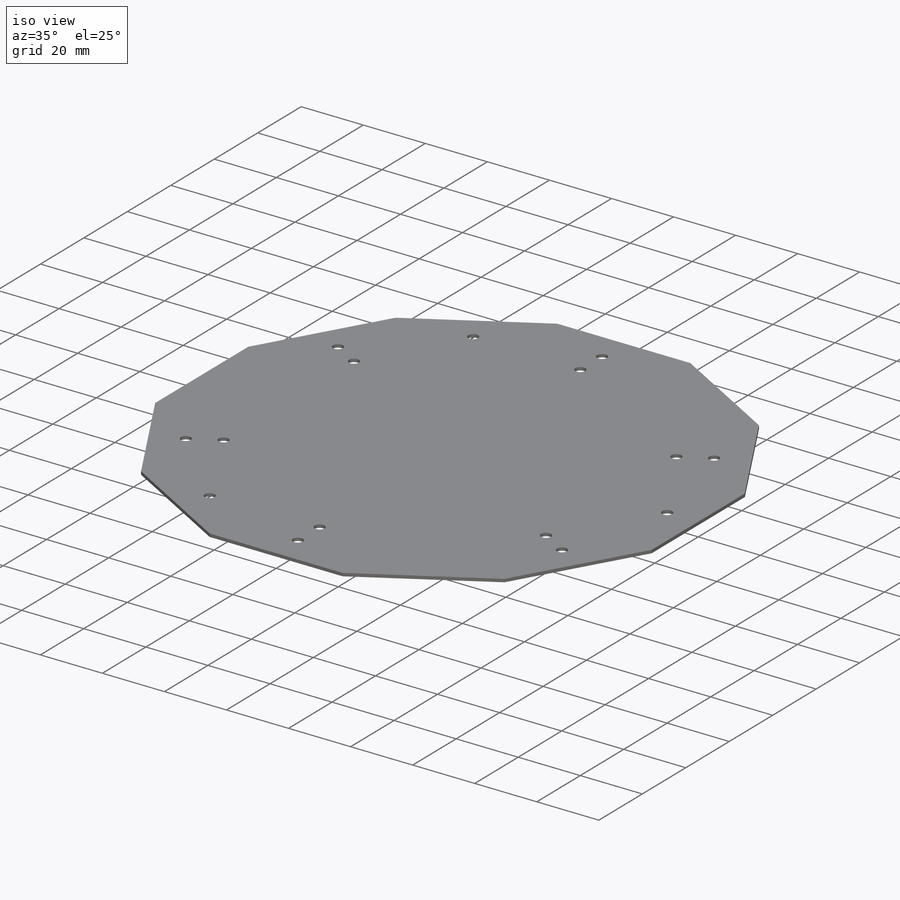
[diagram: iso view]
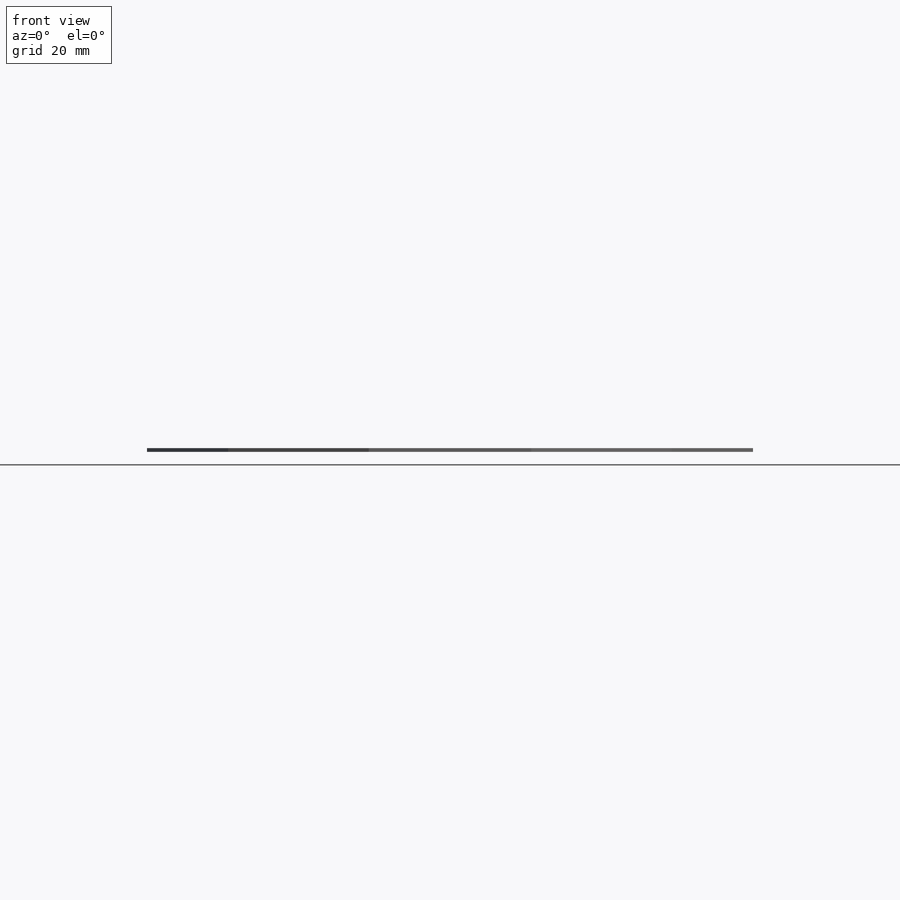
[diagram: front view]
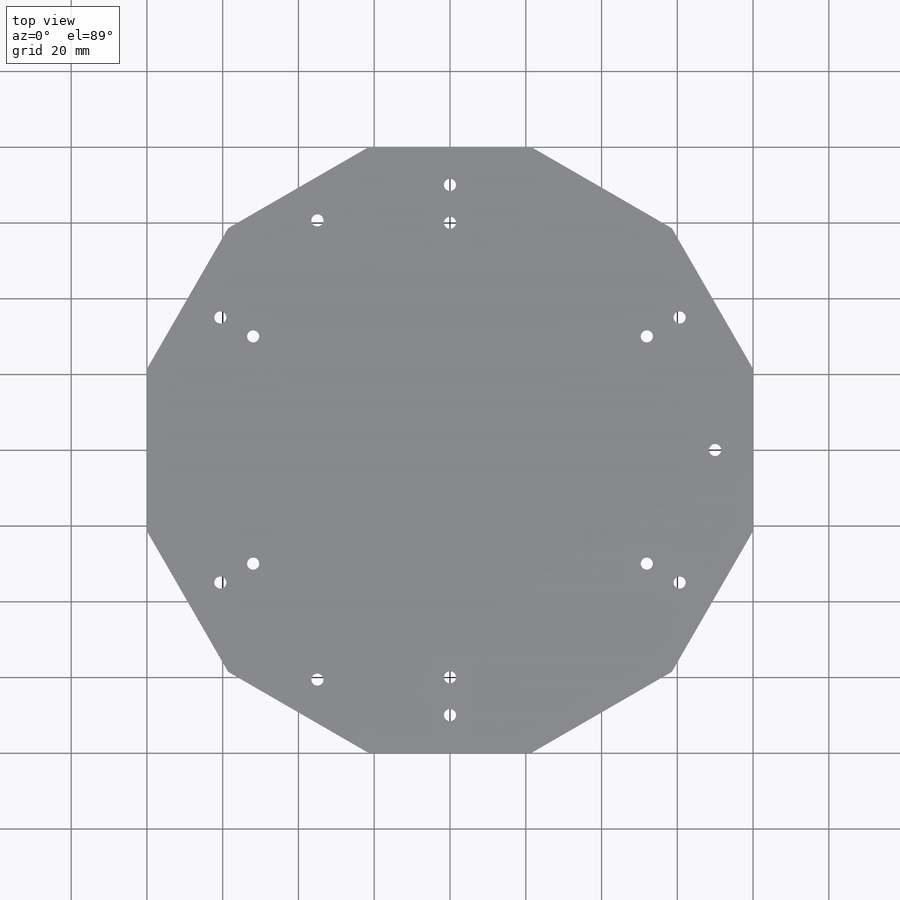
[diagram: top view]
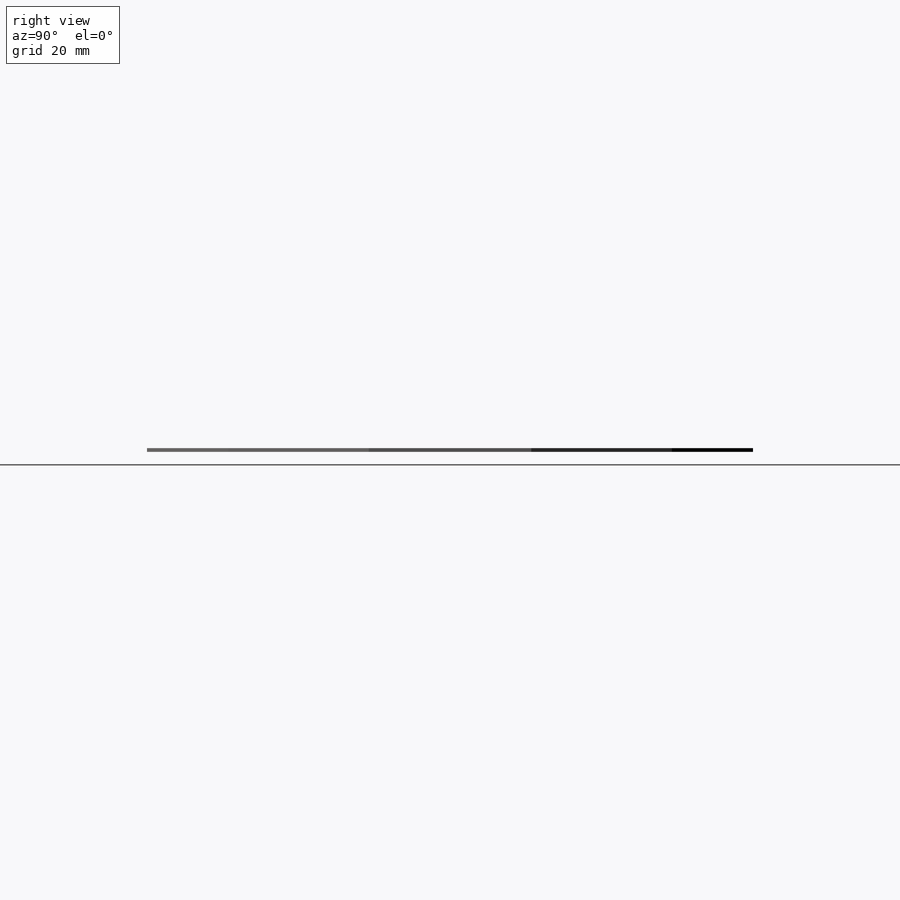
[diagram: right view]
SOLIDWORKS PART (.sldprt)
format: sldprt  version: not decoded by parser v0  size: 312,832 bytes
history: native  units: mm
features: sketch x16, cut_extrude x15, plane x3, material x1, extrude x1 + 2 further entries (+8 scaffold rows collapsed)
feature tree (46):
  scaffold x8  (default folders/planes/origin — collapsed)
  material  "材料 <指定なし>"
  "ｻｰﾌｪｽ ﾎﾞﾃﾞｨ"
  "ｿﾘｯﾄﾞ ﾎﾞﾃﾞｨ"
  plane  "正面"
  plane  "平面"
  plane  "右側面"
  sketch  "ｽｹｯﾁ8"  dims[D1=30.0deg]
  extrude  "ﾎﾞｽ - 押し出し2"  Depth=1mm
  sketch  "ｽｹｯﾁ9"  dims[D1=~2.176892mm]
  cut_extrude  "ｶｯﾄ - 押し出し5"  Depth=1mm
  sketch  "ｽｹｯﾁ10"  dims[D1=~2.390503mm]
  cut_extrude  "ｶｯﾄ - 押し出し6"  Depth=1mm
  sketch  "ｽｹｯﾁ11"  dims[D1=~1.921854mm]
  cut_extrude  "ｶｯﾄ - 押し出し7"  Depth=1mm
  sketch  "ｽｹｯﾁ12"  dims[D1=~1.847908mm]
  cut_extrude  "ｶｯﾄ - 押し出し8"  Depth=1mm
  sketch  "ｽｹｯﾁ16"  dims[D1=~1.443365mm]
  cut_extrude  "ｶｯﾄ - 押し出し9"  Depth=1mm
  sketch  "ｽｹｯﾁ17"  dims[D1=~3.30028mm]
  cut_extrude  "ｶｯﾄ - 押し出し10"  Depth=1mm
  sketch  "ｽｹｯﾁ18"  dims[D1=~2.600856mm]
  cut_extrude  "ｶｯﾄ - 押し出し11"  Depth=1mm
  sketch  "ｽｹｯﾁ19"  dims[D1=~3.057609mm]
  cut_extrude  "ｶｯﾄ - 押し出し12"  Depth=1mm
  sketch  "ｽｹｯﾁ20"  dims[D1=~2.749823mm]
  cut_extrude  "ｶｯﾄ - 押し出し13"  Depth=1mm
  sketch  "ｽｹｯﾁ21"  dims[D1=~2.487379mm]
  cut_extrude  "ｶｯﾄ - 押し出し14"  Depth=1mm
  sketch  "ｽｹｯﾁ22"  dims[D1=~2.06349mm]
  cut_extrude  "ｶｯﾄ - 押し出し15"  Depth=1mm
  sketch  "ｽｹｯﾁ23"  dims[D1=~2.168333mm]
  cut_extrude  "ｶｯﾄ - 押し出し16"  Depth=1mm
  sketch  "ｽｹｯﾁ24"  dims[D1=~3.157289mm]
  cut_extrude  "ｶｯﾄ - 押し出し17"  [1 undecoded]
  sketch  "ｽｹｯﾁ25"  dims[D1=~2.262233mm]
  cut_extrude  "ｶｯﾄ - 押し出し18"  [1 undecoded]
  sketch  "ｽｹｯﾁ26"  dims[D1=~2.700179mm]
  cut_extrude  "ｶｯﾄ - 押し出し19"  [1 undecoded]
decode coverage: 29 of 32 modeling features carry decoded parameters; 2 rows unclassified (native names shown)
note: ~ marks probable driven/reference dimensions
note: 3 parameter values undecoded
summary: no parameter record found for 3 features
note: suppression state not decoded; provenance and decode notes live in map.json
